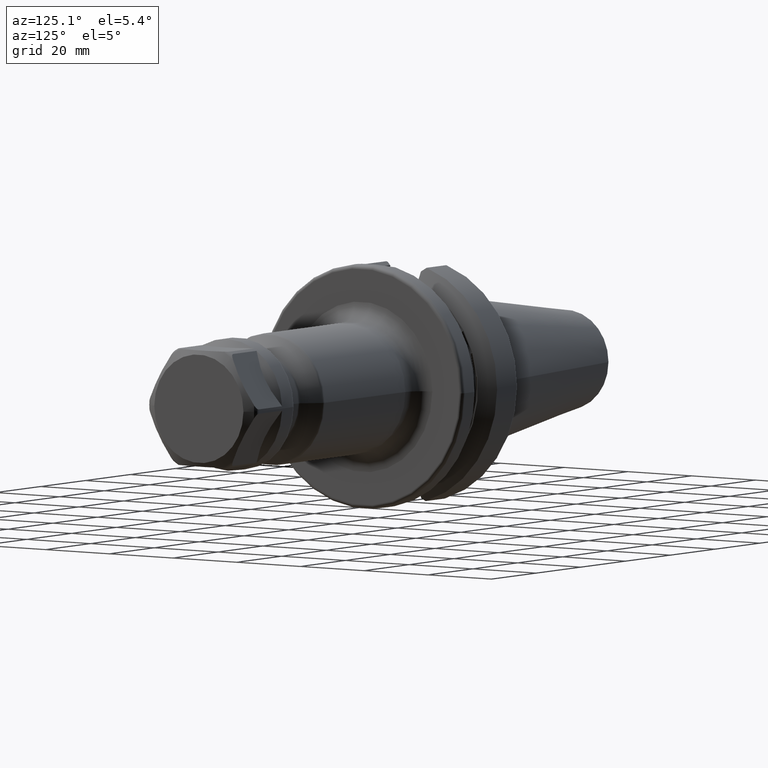
[diagram: clean part render]
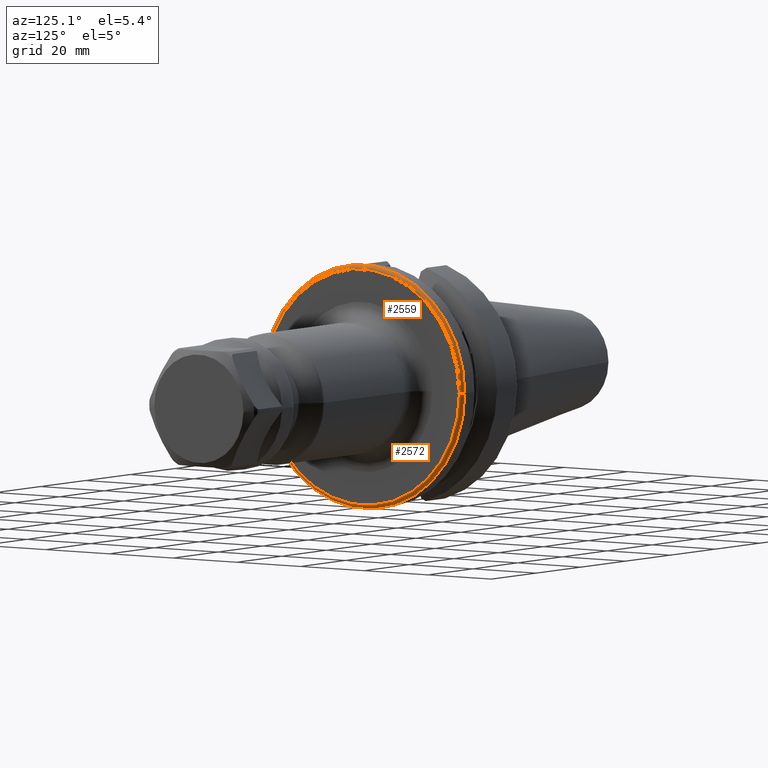
[diagram: same view with one multi-face feature highlighted, each face labeled with its STEP entity id]
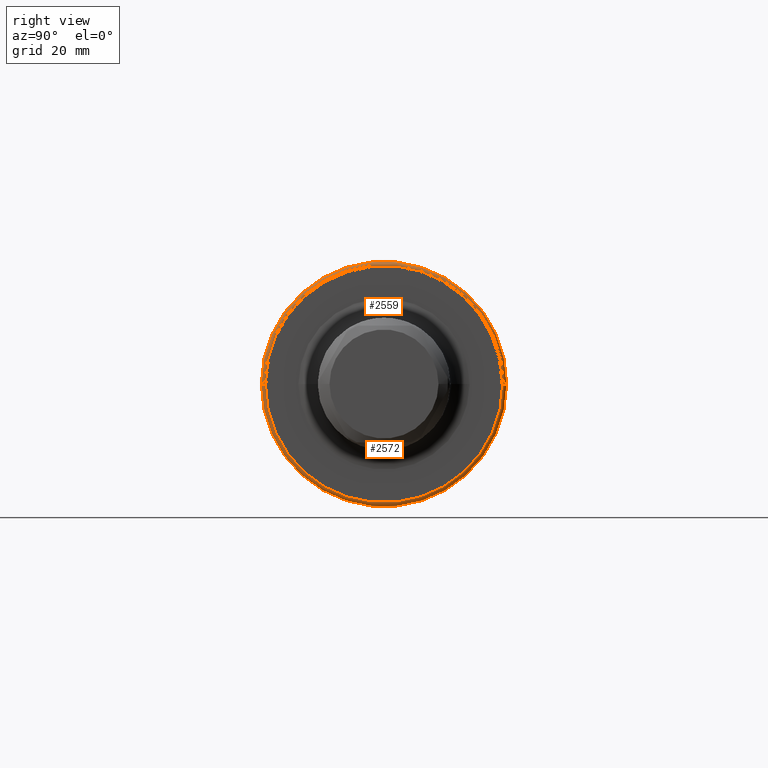
[diagram: same view with one multi-face feature highlighted, each face labeled with its STEP entity id]
A machine part, auxiliary view. The highlighted faces form ONE feature: a constant-radius fillet chain: 2 tangent blend faces with common blend radius 1 mm. The faces share edges in the B-rep.
A second angle (right view) of the same feature is appended — it is thin or edge-on in the first view.
Their STEP definitions:
[1] entity #2572 (Torus):
#255=CARTESIAN_POINT('',(2.6E1,0.E0,0.E0));
#256=DIRECTION('',(-1.E0,0.E0,0.E0));
#257=DIRECTION('',(0.E0,1.E0,0.E0));
#258=AXIS2_PLACEMENT_3D('',#255,#256,#257);
#821=CARTESIAN_POINT('',(2.6E1,3.04875E1,0.E0));
#822=DIRECTION('',(0.E0,0.E0,1.E0));
#823=DIRECTION('',(1.E0,0.E0,0.E0));
#824=AXIS2_PLACEMENT_3D('',#821,#822,#823);
#826=CARTESIAN_POINT('',(2.6E1,-3.04875E1,0.E0));
#827=DIRECTION('',(0.E0,0.E0,-1.E0));
#828=DIRECTION('',(1.E0,0.E0,0.E0));
#829=AXIS2_PLACEMENT_3D('',#826,#827,#828);
#831=CARTESIAN_POINT('',(2.7E1,0.E0,0.E0));
#832=DIRECTION('',(-1.E0,0.E0,0.E0));
#833=DIRECTION('',(0.E0,1.E0,0.E0));
#834=AXIS2_PLACEMENT_3D('',#831,#832,#833);
#1290=CARTESIAN_POINT('',(2.6E1,3.14875E1,0.E0));
#1291=VERTEX_POINT('',#1290);
#1292=CARTESIAN_POINT('',(2.6E1,-3.14875E1,0.E0));
#1293=VERTEX_POINT('',#1292);
#1360=CARTESIAN_POINT('',(2.7E1,3.04875E1,0.E0));
#1361=VERTEX_POINT('',#1360);
#1362=CARTESIAN_POINT('',(2.7E1,-3.04875E1,0.E0));
#1363=VERTEX_POINT('',#1362);
#2560=CARTESIAN_POINT('',(2.6E1,0.E0,0.E0));
#2561=DIRECTION('',(1.E0,0.E0,0.E0));
#2562=DIRECTION('',(0.E0,-1.E0,0.E0));
#2563=AXIS2_PLACEMENT_3D('',#2560,#2561,#2562);
#2564=TOROIDAL_SURFACE('',#2563,3.04875E1,1.E0);
#2565=ORIENTED_EDGE('',*,*,#2550,.T.);
#2566=ORIENTED_EDGE('',*,*,#1827,.T.);
#2567=ORIENTED_EDGE('',*,*,#2554,.F.);
#2569=ORIENTED_EDGE('',*,*,#2568,.F.);
#2570=EDGE_LOOP('',(#2565,#2566,#2567,#2569));
#2571=FACE_OUTER_BOUND('',#2570,.F.);
#2572=ADVANCED_FACE('',(#2571),#2564,.T.);
#259=CIRCLE('',#258,3.14875E1);
#825=CIRCLE('',#824,1.E0);
#830=CIRCLE('',#829,1.E0);
#835=CIRCLE('',#834,3.04875E1);
#1827=EDGE_CURVE('',#1291,#1293,#259,.T.);
#2550=EDGE_CURVE('',#1361,#1291,#825,.T.);
#2554=EDGE_CURVE('',#1363,#1293,#830,.T.);
#2568=EDGE_CURVE('',#1361,#1363,#835,.T.);
[2] entity #2559 (Torus):
#792=CARTESIAN_POINT('',(2.6E1,0.E0,0.E0));
#793=DIRECTION('',(1.E0,0.E0,0.E0));
#794=DIRECTION('',(0.E0,1.E0,0.E0));
#795=AXIS2_PLACEMENT_3D('',#792,#793,#794);
#816=CARTESIAN_POINT('',(2.7E1,0.E0,0.E0));
#817=DIRECTION('',(1.E0,0.E0,0.E0));
#818=DIRECTION('',(0.E0,1.E0,0.E0));
#819=AXIS2_PLACEMENT_3D('',#816,#817,#818);
#821=CARTESIAN_POINT('',(2.6E1,3.04875E1,0.E0));
#822=DIRECTION('',(0.E0,0.E0,1.E0));
#823=DIRECTION('',(1.E0,0.E0,0.E0));
#824=AXIS2_PLACEMENT_3D('',#821,#822,#823);
#826=CARTESIAN_POINT('',(2.6E1,-3.04875E1,0.E0));
#827=DIRECTION('',(0.E0,0.E0,-1.E0));
#828=DIRECTION('',(1.E0,0.E0,0.E0));
#829=AXIS2_PLACEMENT_3D('',#826,#827,#828);
#1290=CARTESIAN_POINT('',(2.6E1,3.14875E1,0.E0));
#1291=VERTEX_POINT('',#1290);
#1292=CARTESIAN_POINT('',(2.6E1,-3.14875E1,0.E0));
#1293=VERTEX_POINT('',#1292);
#1360=CARTESIAN_POINT('',(2.7E1,3.04875E1,0.E0));
#1361=VERTEX_POINT('',#1360);
#1362=CARTESIAN_POINT('',(2.7E1,-3.04875E1,0.E0));
#1363=VERTEX_POINT('',#1362);
#2545=CARTESIAN_POINT('',(2.6E1,0.E0,0.E0));
#2546=DIRECTION('',(1.E0,0.E0,0.E0));
#2547=DIRECTION('',(0.E0,-1.E0,0.E0));
#2548=AXIS2_PLACEMENT_3D('',#2545,#2546,#2547);
#2549=TOROIDAL_SURFACE('',#2548,3.04875E1,1.E0);
#2551=ORIENTED_EDGE('',*,*,#2550,.F.);
#2553=ORIENTED_EDGE('',*,*,#2552,.T.);
#2555=ORIENTED_EDGE('',*,*,#2554,.T.);
#2556=ORIENTED_EDGE('',*,*,#2536,.F.);
#2557=EDGE_LOOP('',(#2551,#2553,#2555,#2556));
#2558=FACE_OUTER_BOUND('',#2557,.F.);
#2559=ADVANCED_FACE('',(#2558),#2549,.T.);
#796=CIRCLE('',#795,3.14875E1);
#820=CIRCLE('',#819,3.04875E1);
#825=CIRCLE('',#824,1.E0);
#830=CIRCLE('',#829,1.E0);
#2536=EDGE_CURVE('',#1291,#1293,#796,.T.);
#2550=EDGE_CURVE('',#1361,#1291,#825,.T.);
#2552=EDGE_CURVE('',#1361,#1363,#820,.T.);
#2554=EDGE_CURVE('',#1363,#1293,#830,.T.);